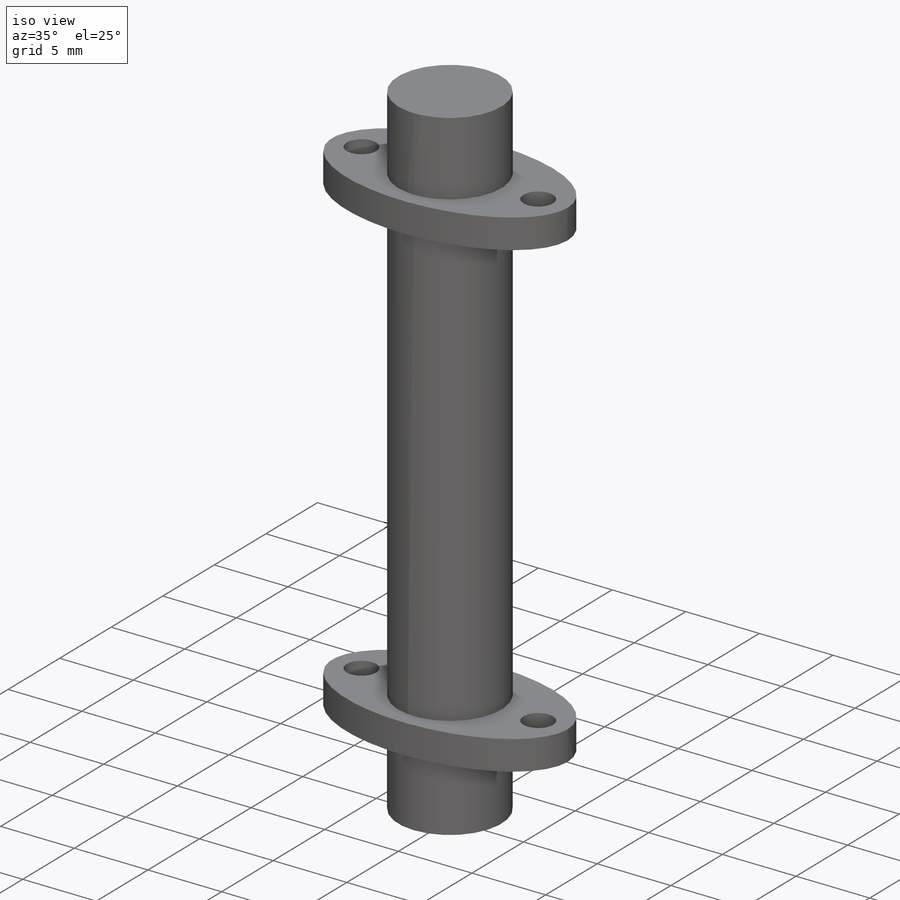
[diagram: iso view]
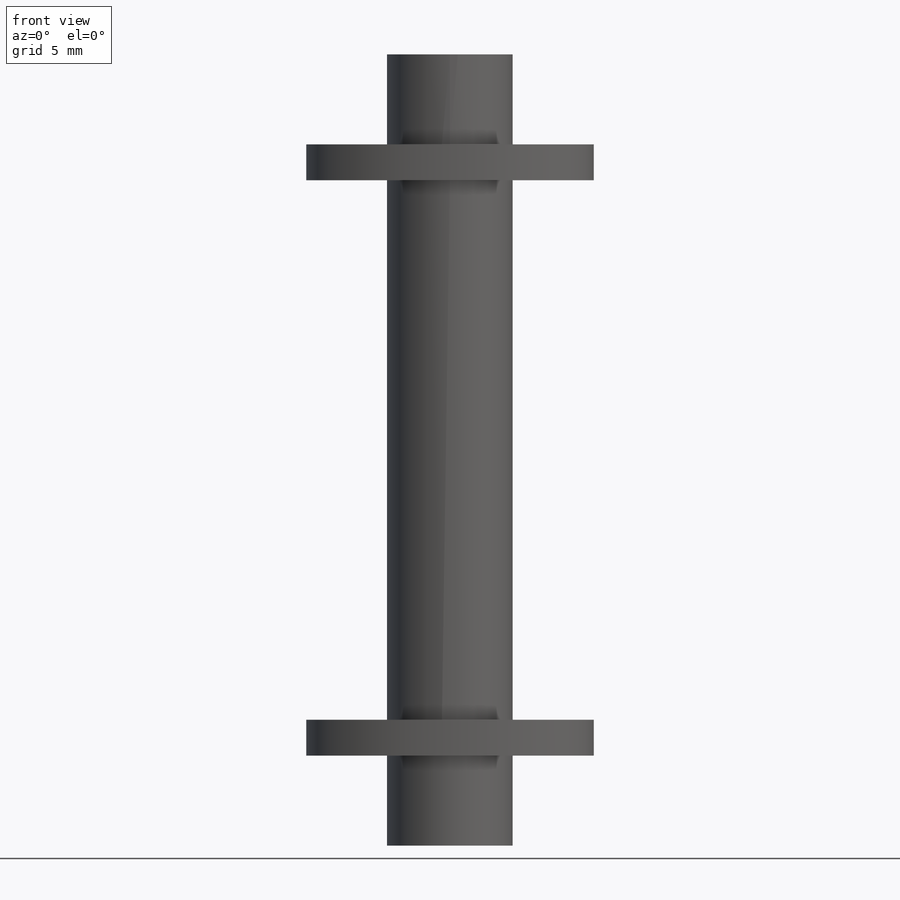
[diagram: front view]
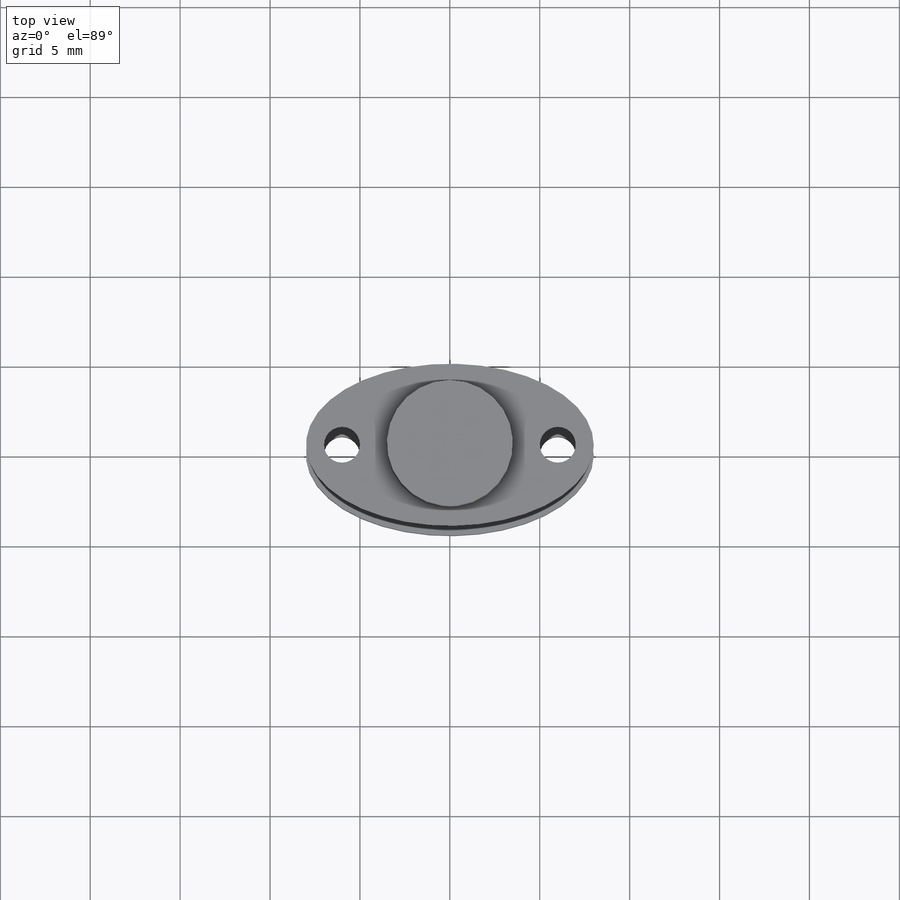
[diagram: top view]
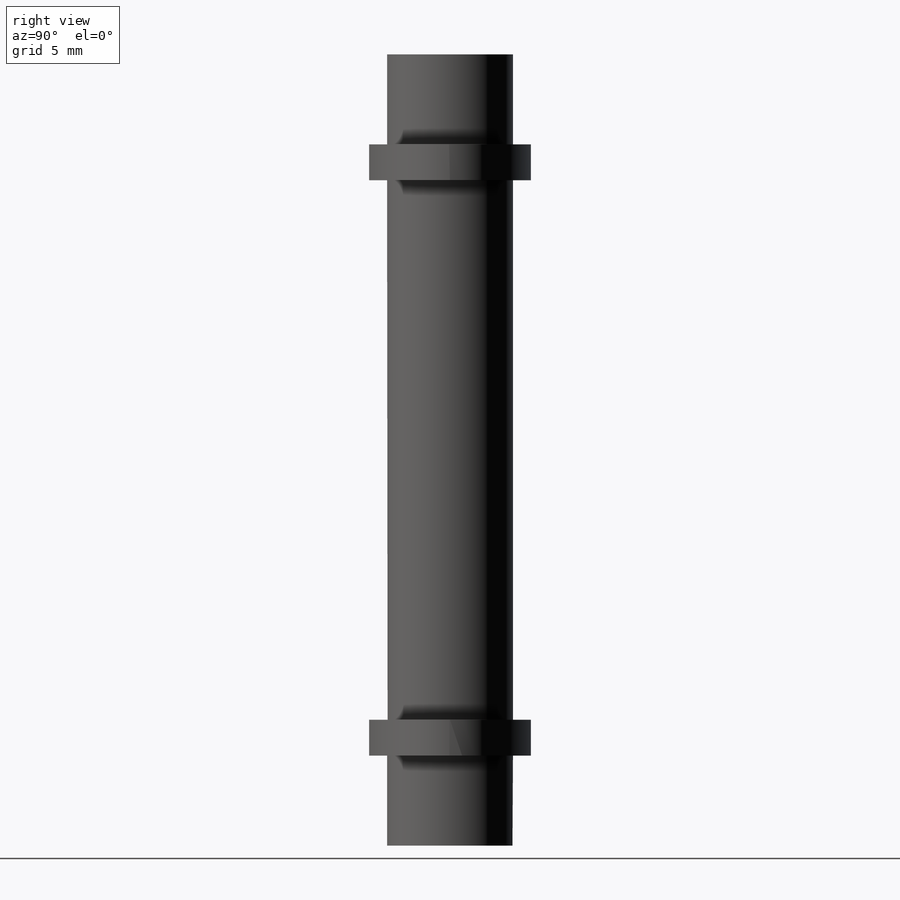
[diagram: right view]
SOLIDWORKS PART (.sldprt)
format: sldprt  version: not decoded by parser v0  size: 152,576 bytes
history: native  units: mm
features: plane x3, sketch x3, extrude x3, material x1, mirror x1 (+8 scaffold rows collapsed)
feature tree (19):
  scaffold x8  (default folders/planes/origin — collapsed)
  material  "Matériau <non spécifié>"
  plane  "Plan de face"
  plane  "Plan de dessus"
  plane  "Plan de droite"
  sketch  "Esquisse1"  dims[D1=7.0mm]
  extrude  "Boss.-Extru.1"  Depth=15mm
  sketch  "Esquisse2"  dims[c1.D3=2.0mm c1.D1=10.0mm c1.D2=9.0mm c2.D1=8.0mm c2.D4=6.0mm]
  extrude  "Boss.-Extru.2"  Depth=2mm
  sketch  "Esquisse4"  dims[D1=7.0mm]
  extrude  "Boss.-Extru.3"  Depth=5mm
  mirror  "Symétrie1"
decode coverage: 6 of 7 modeling features carry decoded parameters
note: suppression state not decoded; provenance and decode notes live in map.json
